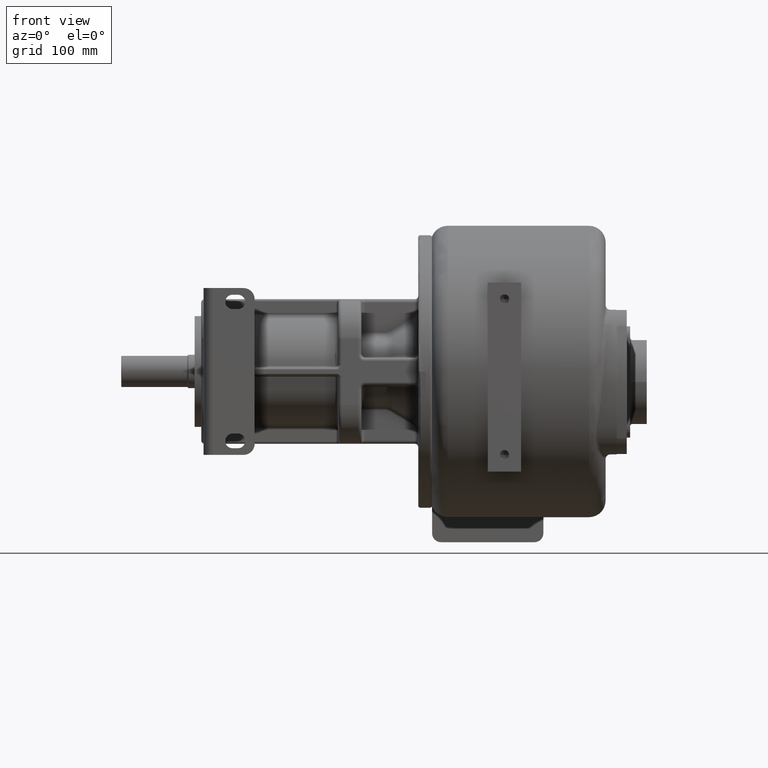
[diagram: clean part render]
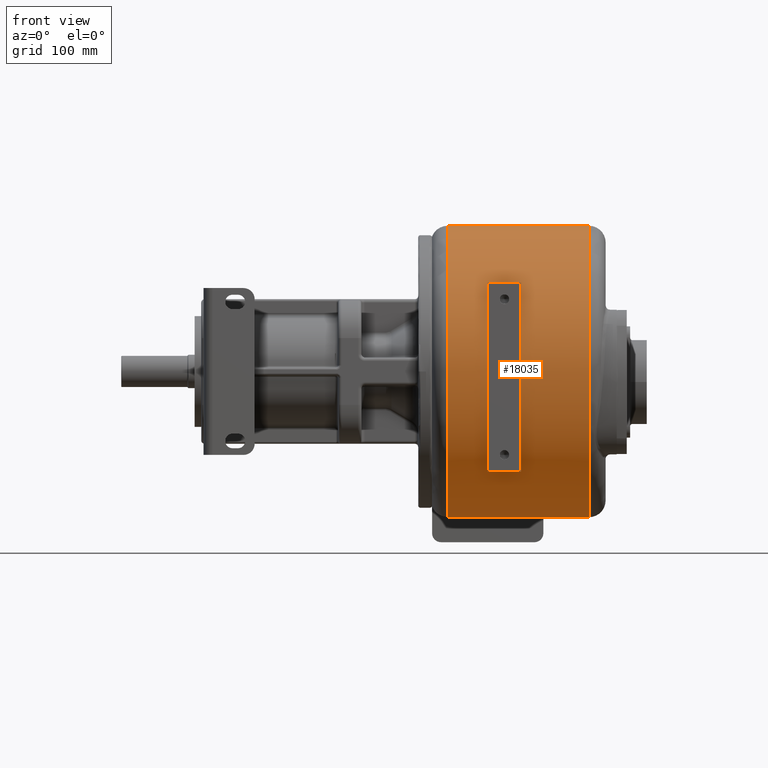
[diagram: same view with one face highlighted and labeled with its STEP entity id]
A machine part, front view. The second image highlights one B-rep face of the part: STEP entity #18035.
In plain terms, the highlighted cylindrical surface (partial cylindrical patch) has radius 131 mm, axis along (-1, 0, 0).
Its self-contained STEP definition (entity closure, byte-faithful):
#3946=CARTESIAN_POINT('',(-5.1E1,1.32E2,0.E0));
#3947=DIRECTION('',(-1.E0,0.E0,0.E0));
#3948=DIRECTION('',(0.E0,0.E0,-1.E0));
#3949=AXIS2_PLACEMENT_3D('',#3946,#3947,#3948);
#3951=CARTESIAN_POINT('',(7.6E1,1.32E2,0.E0));
#3952=DIRECTION('',(1.E0,0.E0,0.E0));
#3953=DIRECTION('',(0.E0,0.E0,1.E0));
#3954=AXIS2_PLACEMENT_3D('',#3951,#3952,#3953);
#3956=DIRECTION('',(1.E0,-7.027099811927E-14,0.E0));
#3957=VECTOR('',#3956,1.27E2);
#3958=CARTESIAN_POINT('',(-5.1E1,1.32E2,-1.31E2));
#3959=LINE('',#3958,#3957);
#3960=DIRECTION('',(-1.E0,0.E0,0.E0));
#3961=VECTOR('',#3960,3.E1);
#3962=CARTESIAN_POINT('',(1.5E1,3.681071488870E1,-9.E1));
#3963=LINE('',#3962,#3961);
#3964=CARTESIAN_POINT('',(1.5E1,1.32E2,0.E0));
#3965=DIRECTION('',(-1.E0,0.E0,0.E0));
#3966=DIRECTION('',(0.E0,-7.266357642084E-1,-6.870229007634E-1));
#3967=AXIS2_PLACEMENT_3D('',#3964,#3965,#3966);
#3969=DIRECTION('',(-1.E0,0.E0,0.E0));
#3970=VECTOR('',#3969,3.E1);
#3971=CARTESIAN_POINT('',(1.5E1,2.826476008607E1,8.E1));
#3972=LINE('',#3971,#3970);
#3973=CARTESIAN_POINT('',(-1.5E1,1.32E2,0.E0));
#3974=DIRECTION('',(-1.E0,0.E0,0.E0));
#3975=DIRECTION('',(0.E0,-7.266357642084E-1,-6.870229007634E-1));
#3976=AXIS2_PLACEMENT_3D('',#3973,#3974,#3975);
#3986=DIRECTION('',(1.E0,1.304713117947E-13,0.E0));
#3987=VECTOR('',#3986,1.27E2);
#3988=CARTESIAN_POINT('',(-5.1E1,1.32E2,1.31E2));
#3989=LINE('',#3988,#3987);
#11781=CARTESIAN_POINT('',(-1.5E1,3.681071488870E1,-9.E1));
#11782=VERTEX_POINT('',#11781);
#11783=CARTESIAN_POINT('',(1.5E1,3.681071488870E1,-9.E1));
#11784=VERTEX_POINT('',#11783);
#11785=CARTESIAN_POINT('',(1.5E1,2.826476008607E1,8.E1));
#11786=VERTEX_POINT('',#11785);
#11787=CARTESIAN_POINT('',(-1.5E1,2.826476008607E1,8.E1));
#11788=VERTEX_POINT('',#11787);
#11879=CARTESIAN_POINT('',(7.6E1,1.32E2,-1.31E2));
#11880=VERTEX_POINT('',#11879);
#11881=CARTESIAN_POINT('',(7.6E1,1.32E2,1.31E2));
#11882=VERTEX_POINT('',#11881);
#11911=CARTESIAN_POINT('',(-5.1E1,1.32E2,-1.31E2));
#11912=VERTEX_POINT('',#11911);
#11913=CARTESIAN_POINT('',(-5.1E1,1.32E2,1.31E2));
#11914=VERTEX_POINT('',#11913);
#18012=CARTESIAN_POINT('',(-6.6E1,1.32E2,0.E0));
#18013=DIRECTION('',(-1.E0,0.E0,0.E0));
#18014=DIRECTION('',(0.E0,0.E0,1.E0));
#18015=AXIS2_PLACEMENT_3D('',#18012,#18013,#18014);
#18016=CYLINDRICAL_SURFACE('',#18015,1.31E2);
#18017=ORIENTED_EDGE('',*,*,#16436,.T.);
#18019=ORIENTED_EDGE('',*,*,#18018,.T.);
#18021=ORIENTED_EDGE('',*,*,#18020,.T.);
#18022=ORIENTED_EDGE('',*,*,#16945,.F.);
#18023=EDGE_LOOP('',(#18017,#18019,#18021,#18022));
#18024=FACE_OUTER_BOUND('',#18023,.F.);
#18026=ORIENTED_EDGE('',*,*,#18025,.F.);
#18028=ORIENTED_EDGE('',*,*,#18027,.T.);
#18030=ORIENTED_EDGE('',*,*,#18029,.T.);
#18032=ORIENTED_EDGE('',*,*,#18031,.F.);
#18033=EDGE_LOOP('',(#18026,#18028,#18030,#18032));
#18034=FACE_BOUND('',#18033,.F.);
#18035=ADVANCED_FACE('',(#18024,#18034),#18016,.T.);
#3950=CIRCLE('',#3949,1.31E2);
#3955=CIRCLE('',#3954,1.31E2);
#3968=CIRCLE('',#3967,1.31E2);
#3977=CIRCLE('',#3976,1.31E2);
#16436=EDGE_CURVE('',#11912,#11914,#3950,.T.);
#16945=EDGE_CURVE('',#11912,#11880,#3959,.T.);
#18018=EDGE_CURVE('',#11914,#11882,#3989,.T.);
#18020=EDGE_CURVE('',#11882,#11880,#3955,.T.);
#18025=EDGE_CURVE('',#11784,#11782,#3963,.T.);
#18027=EDGE_CURVE('',#11784,#11786,#3968,.T.);
#18029=EDGE_CURVE('',#11786,#11788,#3972,.T.);
#18031=EDGE_CURVE('',#11782,#11788,#3977,.T.);